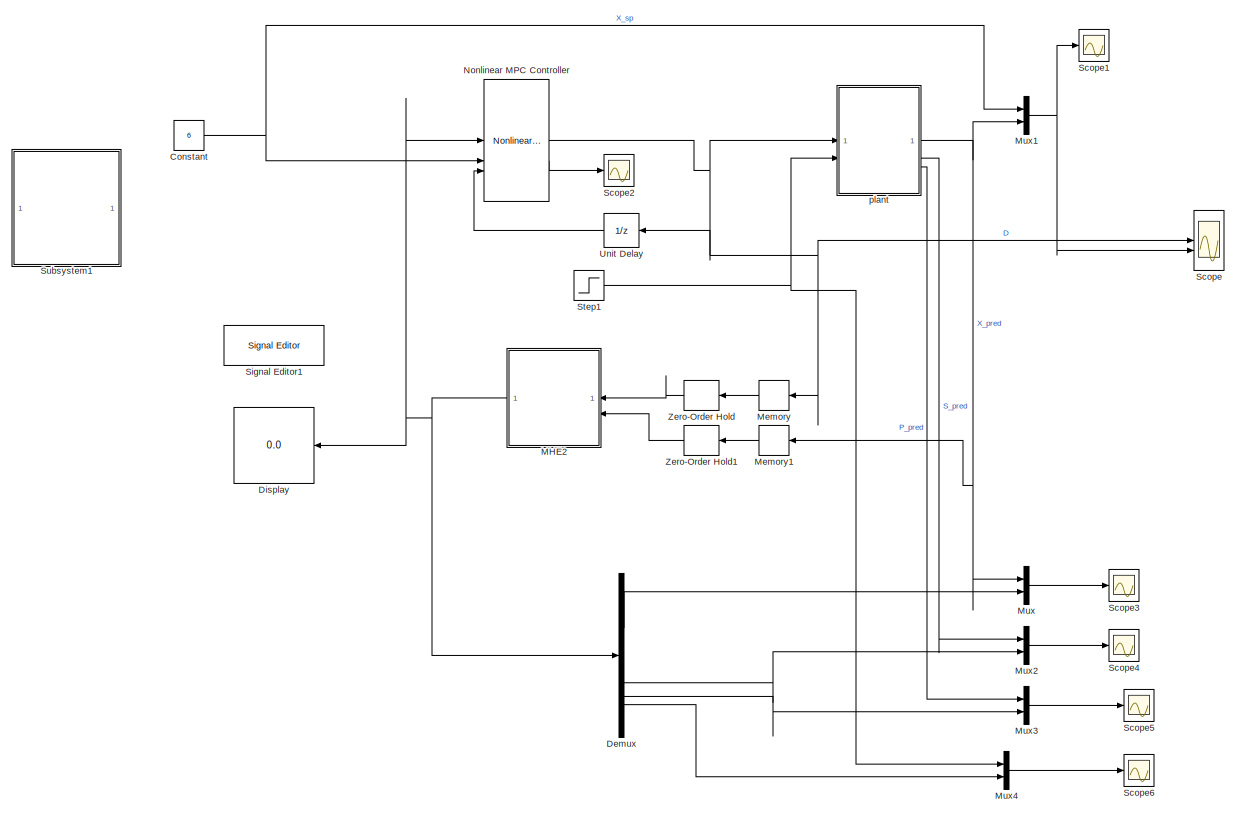
[diagram: root canvas - part 1/2, most of the canvas]
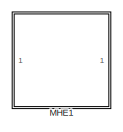
[diagram: root canvas - part 2/2, middle right region]
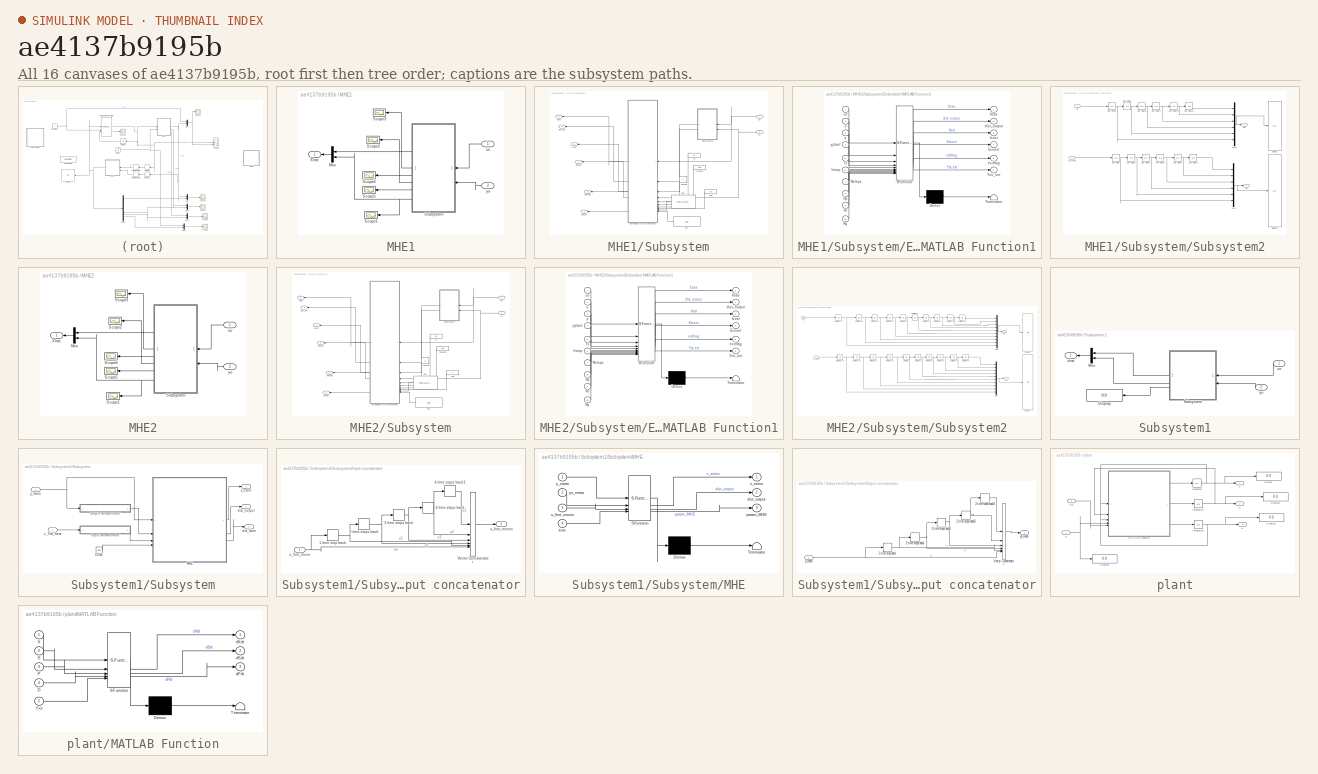
[diagram: thumbnail index - all 16 canvases of the model, root first then tree order]
MODEL slx_ae4137b9195b
KIND model
CONFIG AbsTol = auto
CONFIG EnableMultiTasking = off
CONFIG FixedStep = auto
CONFIG MaxStep = auto
CONFIG MinStep = auto
CONFIG RelTol = 1e-3
CONFIG SampleTimeConstraint = Unconstrained
CONFIG SolverName = VariableStepAuto
CONFIG StartTime = 0.0
CONFIG StopTime = 500
BLOCK [Constant] Constant
  Value = 6
BLOCK [Demux] Demux
BLOCK [Display] Display
  Decimation = 1
BLOCK [SubSystem] MHE1
  Commented = on
BLOCK [Mux] MHE1/Mux
  DisplayOption = bar
  Inputs = 2
BLOCK [Scope] MHE1/Scope1
  Floating = off
  NumInputPorts = 1
  ScopeSpecificationString = Simulink.scopes.TimeScopeBlockCfg('CurrentConfiguration', extmgr.ConfigurationSet(extmgr.Configuration('Core','General UI',true),extmgr.Configuration('Core','Source UI',true),extmgr.Configuration('Sources','WiredSimulink',true,'DataLoggingVariableName','ScopeData1'),extmgr.Configuration('Visuals','Time Domain',true,'SerializedDisplays',{struct('MinYLimReal','8749.54372','MaxYLimReal','8754.10801',...<+1397ch>
BLOCK [Scope] MHE1/Scope2
  Floating = off
  NumInputPorts = 1
  ScopeSpecificationString = Simulink.scopes.TimeScopeBlockCfg('CurrentConfiguration', extmgr.ConfigurationSet(extmgr.Configuration('Core','General UI',true),extmgr.Configuration('Core','Source UI',true),extmgr.Configuration('Sources','WiredSimulink',true,'DataLoggingVariableName','ScopeData3'),extmgr.Configuration('Visuals','Time Domain',true,'SerializedDisplays',{struct('MinYLimReal','0.00304','MaxYLimReal','0.03508','YLabe...<+1373ch>
BLOCK [Scope] MHE1/Scope3
  Floating = off
  NumInputPorts = 1
  ScopeSpecificationString = Simulink.scopes.TimeScopeBlockCfg('CurrentConfiguration', extmgr.ConfigurationSet(extmgr.Configuration('Core','General UI',true),extmgr.Configuration('Core','Source UI',true),extmgr.Configuration('Sources','WiredSimulink',true,'DataLoggingVariableName','ScopeData4'),extmgr.Configuration('Visuals','Time Domain',true,'SerializedDisplays',{struct('MinYLimReal','-2.70623','MaxYLimReal','24.35605','YLa...<+1378ch>
BLOCK [Scope] MHE1/Scope5
  Floating = off
  NumInputPorts = 1
  ScopeSpecificationString = Simulink.scopes.TimeScopeBlockCfg('CurrentConfiguration', extmgr.ConfigurationSet(extmgr.Configuration('Core','General UI',true),extmgr.Configuration('Core','Source UI',true),extmgr.Configuration('Sources','WiredSimulink',true,'DataLoggingVariableName','ScopeData2'),extmgr.Configuration('Visuals','Time Domain',true,'SerializedDisplays',{struct('MinYLimReal','1.00000','MaxYLimReal','3.00000','YLabe...<+1375ch>
BLOCK [Scope] MHE1/Scope6
  Floating = off
  NumInputPorts = 1
  ScopeSpecificationString = Simulink.scopes.TimeScopeBlockCfg('CurrentConfiguration', extmgr.ConfigurationSet(extmgr.Configuration('Core','General UI',true),extmgr.Configuration('Core','Source UI',true),extmgr.Configuration('Sources','WiredSimulink',true,'DataLoggingVariableName','ScopeData2'),extmgr.Configuration('Visuals','Time Domain',true,'SerializedDisplays',{struct('MinYLimReal','-0.14289','MaxYLimReal','0.16211','YLab...<+1408ch>
BLOCK [SubSystem] MHE1/Subsystem
BLOCK [Outport] MHE1/Subsystem/ER_est
  Port = 6
  VectorParamsAs1DForOutWhenUnconnected = off
BLOCK [Outport] MHE1/Subsystem/Ecount
  Port = 2
  VectorParamsAs1DForOutWhenUnconnected = off
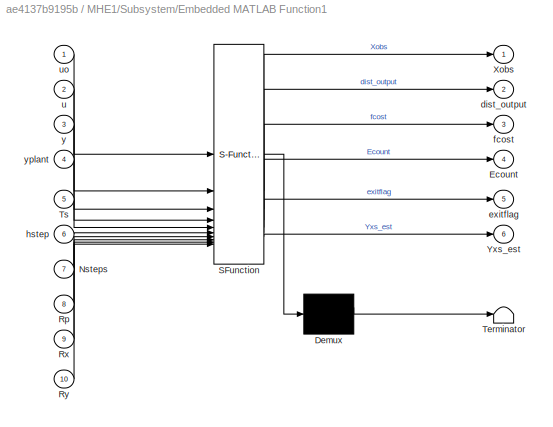
BLOCK [SubSystem] MHE1/Subsystem/Embedded MATLAB Function1
  ErrorFcn = Stateflow.Translate.translate
  PermitHierarchicalResolution = ExplicitOnly
  SFBlockType = MATLAB Function
  TreatAsAtomicUnit = on
BLOCK [Demux] MHE1/Subsystem/Embedded MATLAB Function1/ Demux 
  Outputs = 1
BLOCK [S-Function] MHE1/Subsystem/Embedded MATLAB Function1/ SFunction 
  EnableBusSupport = on
  FunctionName = sf_sfun
  PortCounts = [10 7]
  SFcnIsStateOwnerBlock = off
  SFunctionDeploymentMode = off
  Tag = Stateflow S-Function 4
BLOCK [Terminator] MHE1/Subsystem/Embedded MATLAB Function1/ Terminator 
BLOCK [Outport] MHE1/Subsystem/Embedded MATLAB Function1/Ecount
  Port = 4
  VectorParamsAs1DForOutWhenUnconnected = off
BLOCK [Inport] MHE1/Subsystem/Embedded MATLAB Function1/Nsteps
  Port = 7
BLOCK [Inport] MHE1/Subsystem/Embedded MATLAB Function1/Rp
  Port = 8
BLOCK [Inport] MHE1/Subsystem/Embedded MATLAB Function1/Rx
  Port = 9
BLOCK [Inport] MHE1/Subsystem/Embedded MATLAB Function1/Ry
  Port = 10
BLOCK [Inport] MHE1/Subsystem/Embedded MATLAB Function1/Ts
  Port = 5
BLOCK [Outport] MHE1/Subsystem/Embedded MATLAB Function1/Xobs
  VectorParamsAs1DForOutWhenUnconnected = off
BLOCK [Outport] MHE1/Subsystem/Embedded MATLAB Function1/Yxs_est
  Port = 6
BLOCK [Outport] MHE1/Subsystem/Embedded MATLAB Function1/dist_output
  Port = 2
BLOCK [Outport] MHE1/Subsystem/Embedded MATLAB Function1/exitflag
  Port = 5
BLOCK [Outport] MHE1/Subsystem/Embedded MATLAB Function1/fcost
  Port = 3
  VectorParamsAs1DForOutWhenUnconnected = off
BLOCK [Inport] MHE1/Subsystem/Embedded MATLAB Function1/hstep
  Port = 6
BLOCK [Inport] MHE1/Subsystem/Embedded MATLAB Function1/u
  Port = 2
BLOCK [Inport] MHE1/Subsystem/Embedded MATLAB Function1/uo
BLOCK [Inport] MHE1/Subsystem/Embedded MATLAB Function1/y
  Port = 3
BLOCK [Inport] MHE1/Subsystem/Embedded MATLAB Function1/yplant
  Port = 4
BLOCK [Constant] MHE1/Subsystem/Nsteps
  Value = 2
BLOCK [Constant] MHE1/Subsystem/Rp2
  Value = 0.5
BLOCK [Constant] MHE1/Subsystem/Rx4
  Value = [1e-2,0,0;0,1e-2,0;0,0,1e-2]
BLOCK [Constant] MHE1/Subsystem/Ry4
  Value = 1e4
BLOCK [SubSystem] MHE1/Subsystem/Subsystem2
BLOCK [Display] MHE1/Subsystem/Subsystem2/Display
  Decimation = 1
BLOCK [Display] MHE1/Subsystem/Subsystem2/Display1
  Decimation = 1
BLOCK [Mux] MHE1/Subsystem/Subsystem2/Mux
  DisplayOption = bar
  Inputs = 6
BLOCK [Mux] MHE1/Subsystem/Subsystem2/Mux1
  DisplayOption = bar
  Inputs = 6
BLOCK [UnitDelay] MHE1/Subsystem/Subsystem2/Unit Delay
  HasFrameUpgradeWarning = on
  InitialCondition = 6
  SampleTime = Ts
BLOCK [UnitDelay] MHE1/Subsystem/Subsystem2/Unit Delay1
  HasFrameUpgradeWarning = on
  InitialCondition = 6
  SampleTime = Ts
BLOCK [UnitDelay] MHE1/Subsystem/Subsystem2/Unit Delay10
  HasFrameUpgradeWarning = on
  InitialCondition = 0.202
  SampleTime = Ts
BLOCK [UnitDelay] MHE1/Subsystem/Subsystem2/Unit Delay11
  HasFrameUpgradeWarning = on
  InitialCondition = 0.202
  SampleTime = Ts
BLOCK [UnitDelay] MHE1/Subsystem/Subsystem2/Unit Delay2
  HasFrameUpgradeWarning = on
  InitialCondition = 6
  SampleTime = Ts
BLOCK [UnitDelay] MHE1/Subsystem/Subsystem2/Unit Delay3
  HasFrameUpgradeWarning = on
  InitialCondition = 6
  SampleTime = Ts
BLOCK [UnitDelay] MHE1/Subsystem/Subsystem2/Unit Delay4
  HasFrameUpgradeWarning = on
  InitialCondition = 6
  SampleTime = Ts
BLOCK [UnitDelay] MHE1/Subsystem/Subsystem2/Unit Delay5
  HasFrameUpgradeWarning = on
  InitialCondition = 6
  SampleTime = Ts
BLOCK [UnitDelay] MHE1/Subsystem/Subsystem2/Unit Delay6
  HasFrameUpgradeWarning = on
  InitialCondition = 0.202
  SampleTime = Ts
BLOCK [UnitDelay] MHE1/Subsystem/Subsystem2/Unit Delay7
  HasFrameUpgradeWarning = on
  InitialCondition = 0.202
  SampleTime = Ts
BLOCK [UnitDelay] MHE1/Subsystem/Subsystem2/Unit Delay8
  HasFrameUpgradeWarning = on
  InitialCondition = 0.202
  SampleTime = Ts
BLOCK [UnitDelay] MHE1/Subsystem/Subsystem2/Unit Delay9
  HasFrameUpgradeWarning = on
  InitialCondition = 0.202
  SampleTime = Ts
BLOCK [Outport] MHE1/Subsystem/Subsystem2/um
  VectorParamsAs1DForOutWhenUnconnected = off
BLOCK [Inport] MHE1/Subsystem/Subsystem2/uo
BLOCK [Outport] MHE1/Subsystem/Subsystem2/ym
  Port = 2
  VectorParamsAs1DForOutWhenUnconnected = off
BLOCK [Inport] MHE1/Subsystem/Subsystem2/yo_meas
  Port = 2
BLOCK [Constant] MHE1/Subsystem/Ts
  Value = 0.5
BLOCK [Outport] MHE1/Subsystem/Xobs
  Port = 3
  VectorParamsAs1DForOutWhenUnconnected = off
BLOCK [Outport] MHE1/Subsystem/dist_out
  Port = 4
  VectorParamsAs1DForOutWhenUnconnected = off
BLOCK [Outport] MHE1/Subsystem/exitflag
  Port = 5
  VectorParamsAs1DForOutWhenUnconnected = off
BLOCK [Outport] MHE1/Subsystem/fcost
  VectorParamsAs1DForOutWhenUnconnected = off
BLOCK [Constant] MHE1/Subsystem/hsteps1
  Value = 0.05
BLOCK [Inport] MHE1/Subsystem/uo
BLOCK [Inport] MHE1/Subsystem/yo
  Port = 2
BLOCK [Outport] MHE1/Xhat
BLOCK [Inport] MHE1/uo
BLOCK [Inport] MHE1/yo
  Port = 2
BLOCK [SubSystem] MHE2
BLOCK [Mux] MHE2/Mux
  DisplayOption = bar
  Inputs = 2
BLOCK [Scope] MHE2/Scope1
  Floating = off
  NumInputPorts = 1
  ScopeSpecificationString = Simulink.scopes.TimeScopeBlockCfg('CurrentConfiguration', extmgr.ConfigurationSet(extmgr.Configuration('Core','General UI',true),extmgr.Configuration('Core','Source UI',true),extmgr.Configuration('Sources','WiredSimulink',true,'DataLoggingVariableName','ScopeData1'),extmgr.Configuration('Visuals','Time Domain',true,'SerializedDisplays',{struct('MinYLimReal','8749.54372','MaxYLimReal','8754.10801',...<+1397ch>
BLOCK [Scope] MHE2/Scope2
  Floating = off
  NumInputPorts = 1
  ScopeSpecificationString = Simulink.scopes.TimeScopeBlockCfg('CurrentConfiguration', extmgr.ConfigurationSet(extmgr.Configuration('Core','General UI',true),extmgr.Configuration('Core','Source UI',true),extmgr.Configuration('Sources','WiredSimulink',true,'DataLoggingVariableName','ScopeData3'),extmgr.Configuration('Visuals','Time Domain',true,'SerializedDisplays',{struct('MinYLimReal','0.00304','MaxYLimReal','0.03508','YLabe...<+1373ch>
BLOCK [Scope] MHE2/Scope3
  Floating = off
  NumInputPorts = 1
  ScopeSpecificationString = Simulink.scopes.TimeScopeBlockCfg('CurrentConfiguration', extmgr.ConfigurationSet(extmgr.Configuration('Core','General UI',true),extmgr.Configuration('Core','Source UI',true),extmgr.Configuration('Sources','WiredSimulink',true,'DataLoggingVariableName','ScopeData4'),extmgr.Configuration('Visuals','Time Domain',true,'SerializedDisplays',{struct('MinYLimReal','-2.70623','MaxYLimReal','24.35605','YLa...<+1378ch>
BLOCK [Scope] MHE2/Scope5
  Floating = off
  NumInputPorts = 1
  ScopeSpecificationString = Simulink.scopes.TimeScopeBlockCfg('CurrentConfiguration', extmgr.ConfigurationSet(extmgr.Configuration('Core','General UI',true),extmgr.Configuration('Core','Source UI',true),extmgr.Configuration('Sources','WiredSimulink',true,'DataLoggingVariableName','ScopeData2'),extmgr.Configuration('Visuals','Time Domain',true,'SerializedDisplays',{struct('MinYLimReal','1.00000','MaxYLimReal','3.00000','YLabe...<+1375ch>
BLOCK [Scope] MHE2/Scope6
  Floating = off
  NumInputPorts = 1
  ScopeSpecificationString = Simulink.scopes.TimeScopeBlockCfg('CurrentConfiguration', extmgr.ConfigurationSet(extmgr.Configuration('Core','General UI',true),extmgr.Configuration('Core','Source UI',true),extmgr.Configuration('Sources','WiredSimulink',true,'DataLoggingVariableName','ScopeData2'),extmgr.Configuration('Visuals','Time Domain',true,'SerializedDisplays',{struct('MinYLimReal','-0.14289','MaxYLimReal','0.16211','YLab...<+1408ch>
BLOCK [SubSystem] MHE2/Subsystem
BLOCK [Outport] MHE2/Subsystem/ER_est
  Port = 6
  VectorParamsAs1DForOutWhenUnconnected = off
BLOCK [Outport] MHE2/Subsystem/Ecount
  Port = 2
  VectorParamsAs1DForOutWhenUnconnected = off
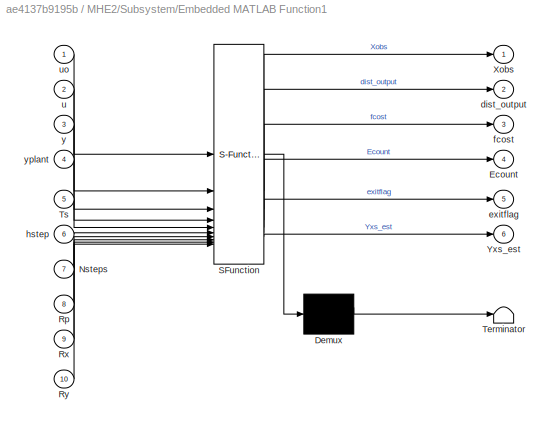
BLOCK [SubSystem] MHE2/Subsystem/Embedded MATLAB Function1
  ErrorFcn = Stateflow.Translate.translate
  PermitHierarchicalResolution = ExplicitOnly
  SFBlockType = MATLAB Function
  TreatAsAtomicUnit = on
BLOCK [Demux] MHE2/Subsystem/Embedded MATLAB Function1/ Demux 
  Outputs = 1
BLOCK [S-Function] MHE2/Subsystem/Embedded MATLAB Function1/ SFunction 
  EnableBusSupport = on
  FunctionName = sf_sfun
  PortCounts = [10 7]
  SFcnIsStateOwnerBlock = off
  SFunctionDeploymentMode = off
  Tag = Stateflow S-Function 3
BLOCK [Terminator] MHE2/Subsystem/Embedded MATLAB Function1/ Terminator 
BLOCK [Outport] MHE2/Subsystem/Embedded MATLAB Function1/Ecount
  Port = 4
  VectorParamsAs1DForOutWhenUnconnected = off
BLOCK [Inport] MHE2/Subsystem/Embedded MATLAB Function1/Nsteps
  Port = 7
BLOCK [Inport] MHE2/Subsystem/Embedded MATLAB Function1/Rp
  Port = 8
BLOCK [Inport] MHE2/Subsystem/Embedded MATLAB Function1/Rx
  Port = 9
BLOCK [Inport] MHE2/Subsystem/Embedded MATLAB Function1/Ry
  Port = 10
BLOCK [Inport] MHE2/Subsystem/Embedded MATLAB Function1/Ts
  Port = 5
BLOCK [Outport] MHE2/Subsystem/Embedded MATLAB Function1/Xobs
  VectorParamsAs1DForOutWhenUnconnected = off
BLOCK [Outport] MHE2/Subsystem/Embedded MATLAB Function1/Yxs_est
  Port = 6
BLOCK [Outport] MHE2/Subsystem/Embedded MATLAB Function1/dist_output
  Port = 2
BLOCK [Outport] MHE2/Subsystem/Embedded MATLAB Function1/exitflag
  Port = 5
BLOCK [Outport] MHE2/Subsystem/Embedded MATLAB Function1/fcost
  Port = 3
  VectorParamsAs1DForOutWhenUnconnected = off
BLOCK [Inport] MHE2/Subsystem/Embedded MATLAB Function1/hstep
  Port = 6
BLOCK [Inport] MHE2/Subsystem/Embedded MATLAB Function1/u
  Port = 2
BLOCK [Inport] MHE2/Subsystem/Embedded MATLAB Function1/uo
BLOCK [Inport] MHE2/Subsystem/Embedded MATLAB Function1/y
  Port = 3
BLOCK [Inport] MHE2/Subsystem/Embedded MATLAB Function1/yplant
  Port = 4
BLOCK [Constant] MHE2/Subsystem/Nsteps
  Value = 2
BLOCK [Constant] MHE2/Subsystem/Rp2
  Value = 5
BLOCK [Constant] MHE2/Subsystem/Rx4
  Value = [1e1,0,0;0,1e1,0;0,0,1e1]
BLOCK [Constant] MHE2/Subsystem/Ry4
  Value = 1e3
BLOCK [SubSystem] MHE2/Subsystem/Subsystem2
BLOCK [Display] MHE2/Subsystem/Subsystem2/Display
  Decimation = 1
BLOCK [Display] MHE2/Subsystem/Subsystem2/Display1
  Decimation = 1
BLOCK [Mux] MHE2/Subsystem/Subsystem2/Mux
  DisplayOption = bar
  Inputs = 10
BLOCK [Mux] MHE2/Subsystem/Subsystem2/Mux1
  DisplayOption = bar
  Inputs = 10
BLOCK [UnitDelay] MHE2/Subsystem/Subsystem2/Unit Delay
  HasFrameUpgradeWarning = on
  InitialCondition = 6
  SampleTime = Ts
BLOCK [UnitDelay] MHE2/Subsystem/Subsystem2/Unit Delay1
  HasFrameUpgradeWarning = on
  InitialCondition = 6
  SampleTime = Ts
BLOCK [UnitDelay] MHE2/Subsystem/Subsystem2/Unit Delay10
  HasFrameUpgradeWarning = on
  InitialCondition = 0.202
  SampleTime = Ts
BLOCK [UnitDelay] MHE2/Subsystem/Subsystem2/Unit Delay11
  HasFrameUpgradeWarning = on
  InitialCondition = 0.202
  SampleTime = Ts
BLOCK [UnitDelay] MHE2/Subsystem/Subsystem2/Unit Delay12
  HasFrameUpgradeWarning = on
  InitialCondition = 0.202
  SampleTime = Ts
BLOCK [UnitDelay] MHE2/Subsystem/Subsystem2/Unit Delay13
  HasFrameUpgradeWarning = on
  InitialCondition = 0.202
  SampleTime = Ts
BLOCK [UnitDelay] MHE2/Subsystem/Subsystem2/Unit Delay14
  HasFrameUpgradeWarning = on
  InitialCondition = 0.202
  SampleTime = Ts
BLOCK [UnitDelay] MHE2/Subsystem/Subsystem2/Unit Delay15
  HasFrameUpgradeWarning = on
  InitialCondition = 0.202
  SampleTime = Ts
BLOCK [UnitDelay] MHE2/Subsystem/Subsystem2/Unit Delay16
  HasFrameUpgradeWarning = on
  InitialCondition = 6
  SampleTime = Ts
BLOCK [UnitDelay] MHE2/Subsystem/Subsystem2/Unit Delay17
  HasFrameUpgradeWarning = on
  InitialCondition = 6
  SampleTime = Ts
BLOCK [UnitDelay] MHE2/Subsystem/Subsystem2/Unit Delay18
  HasFrameUpgradeWarning = on
  InitialCondition = 6
  SampleTime = Ts
BLOCK [UnitDelay] MHE2/Subsystem/Subsystem2/Unit Delay19
  HasFrameUpgradeWarning = on
  InitialCondition = 6
  SampleTime = Ts
BLOCK [UnitDelay] MHE2/Subsystem/Subsystem2/Unit Delay2
  HasFrameUpgradeWarning = on
  InitialCondition = 6
  SampleTime = Ts
BLOCK [UnitDelay] MHE2/Subsystem/Subsystem2/Unit Delay3
  HasFrameUpgradeWarning = on
  InitialCondition = 6
  SampleTime = Ts
BLOCK [UnitDelay] MHE2/Subsystem/Subsystem2/Unit Delay4
  HasFrameUpgradeWarning = on
  InitialCondition = 6
  SampleTime = Ts
BLOCK [UnitDelay] MHE2/Subsystem/Subsystem2/Unit Delay5
  HasFrameUpgradeWarning = on
  InitialCondition = 6
  SampleTime = Ts
BLOCK [UnitDelay] MHE2/Subsystem/Subsystem2/Unit Delay6
  HasFrameUpgradeWarning = on
  InitialCondition = 0.202
  SampleTime = Ts
BLOCK [UnitDelay] MHE2/Subsystem/Subsystem2/Unit Delay7
  HasFrameUpgradeWarning = on
  InitialCondition = 0.202
  SampleTime = Ts
BLOCK [UnitDelay] MHE2/Subsystem/Subsystem2/Unit Delay8
  HasFrameUpgradeWarning = on
  InitialCondition = 0.202
  SampleTime = Ts
BLOCK [UnitDelay] MHE2/Subsystem/Subsystem2/Unit Delay9
  HasFrameUpgradeWarning = on
  InitialCondition = 0.202
  SampleTime = Ts
BLOCK [Outport] MHE2/Subsystem/Subsystem2/um
  VectorParamsAs1DForOutWhenUnconnected = off
BLOCK [Inport] MHE2/Subsystem/Subsystem2/uo
BLOCK [Outport] MHE2/Subsystem/Subsystem2/ym
  Port = 2
  VectorParamsAs1DForOutWhenUnconnected = off
BLOCK [Inport] MHE2/Subsystem/Subsystem2/yo_meas
  Port = 2
BLOCK [Constant] MHE2/Subsystem/Ts
  Value = 0.5
BLOCK [Outport] MHE2/Subsystem/Xobs
  Port = 3
  VectorParamsAs1DForOutWhenUnconnected = off
BLOCK [Outport] MHE2/Subsystem/dist_out
  Port = 4
  VectorParamsAs1DForOutWhenUnconnected = off
BLOCK [Outport] MHE2/Subsystem/exitflag
  Port = 5
  VectorParamsAs1DForOutWhenUnconnected = off
BLOCK [Outport] MHE2/Subsystem/fcost
  VectorParamsAs1DForOutWhenUnconnected = off
BLOCK [Constant] MHE2/Subsystem/hsteps1
  Value = 0.05
BLOCK [Inport] MHE2/Subsystem/uo
BLOCK [Inport] MHE2/Subsystem/yo
  Port = 2
BLOCK [Outport] MHE2/Xhat
BLOCK [Inport] MHE2/uo
BLOCK [Inport] MHE2/yo
  Port = 2
BLOCK [Memory] Memory
  InitialCondition = 0.202
BLOCK [Memory] Memory1
  InitialCondition = 6
BLOCK [Mux] Mux
  DisplayOption = bar
  Inputs = 2
BLOCK [Mux] Mux1
  DisplayOption = bar
  Inputs = 2
BLOCK [Mux] Mux2
  DisplayOption = bar
  Inputs = 2
BLOCK [Mux] Mux3
  DisplayOption = bar
  Inputs = 2
BLOCK [Mux] Mux4
  DisplayOption = bar
  Inputs = 2
BLOCK [Reference] Nonlinear MPC Controller  REF=mpclib/Nonlinear MPC Controller  (lib defined in mdl_ae329e0e0455)
  SourceBlock = mpclib/Nonlinear MPC Controller
  SourceType = NonlinearMPC
BLOCK [Scope] Scope
  Floating = off
  NumInputPorts = 2
  ScopeSpecificationString = Simulink.scopes.TimeScopeBlockCfg('CurrentConfiguration', extmgr.ConfigurationSet(extmgr.Configuration('Core','General UI',true),extmgr.Configuration('Core','Source UI',true),extmgr.Configuration('Sources','WiredSimulink',true),extmgr.Configuration('Visuals','Time Domain',true,'SerializedDisplays',{struct('MinYLimReal','-0.03015','MaxYLimReal','0.2713','YLabelReal','','MinYLimMag','0.00000','MaxYL...<+2242ch>
BLOCK [Scope] Scope1
  Floating = off
  NumInputPorts = 1
  ScopeSpecificationString = Simulink.scopes.TimeScopeBlockCfg('CurrentConfiguration', extmgr.ConfigurationSet(extmgr.Configuration('Core','General UI',true),extmgr.Configuration('Core','Source UI',true),extmgr.Configuration('Sources','WiredSimulink',true,'DataLoggingVariableName','ScopeData1'),extmgr.Configuration('Visuals','Time Domain',true,'SerializedDisplays',{struct('MinYLimReal','4.871','MaxYLimReal','6.16098','YLabelR...<+1362ch>
BLOCK [Scope] Scope2
  Floating = off
  NumInputPorts = 1
  ScopeSpecificationString = Simulink.scopes.TimeScopeBlockCfg('CurrentConfiguration', extmgr.ConfigurationSet(extmgr.Configuration('Core','General UI',true),extmgr.Configuration('Core','Source UI',true),extmgr.Configuration('Sources','WiredSimulink',true,'DataLoggingVariableName','ScopeData2'),extmgr.Configuration('Visuals','Time Domain',true,'SerializedDisplays',{struct('MinYLimReal','0.875','MaxYLimReal','2.125','YLabelRea...<+1341ch>
BLOCK [Scope] Scope3
  Floating = off
  NumInputPorts = 1
  ScopeSpecificationString = Simulink.scopes.TimeScopeBlockCfg('CurrentConfiguration', extmgr.ConfigurationSet(extmgr.Configuration('Core','General UI',true),extmgr.Configuration('Core','Source UI',true),extmgr.Configuration('Sources','WiredSimulink',true,'DataLoggingVariableName','ScopeData1'),extmgr.Configuration('Visuals','Time Domain',true,'SerializedDisplays',{struct('MinYLimReal','-1.00000','MaxYLimReal','9.00000','YLab...<+1375ch>
BLOCK [Scope] Scope4
  Floating = off
  NumInputPorts = 1
  ScopeSpecificationString = Simulink.scopes.TimeScopeBlockCfg('CurrentConfiguration', extmgr.ConfigurationSet(extmgr.Configuration('Core','General UI',true),extmgr.Configuration('Core','Source UI',true),extmgr.Configuration('Sources','WiredSimulink',true,'DataLoggingVariableName','ScopeData2'),extmgr.Configuration('Visuals','Time Domain',true,'SerializedDisplays',{struct('MinYLimReal','-3900.40287','MaxYLimReal','34956.5098'...<+1397ch>
BLOCK [Scope] Scope5
  Floating = off
  NumInputPorts = 1
  ScopeSpecificationString = Simulink.scopes.TimeScopeBlockCfg('CurrentConfiguration', extmgr.ConfigurationSet(extmgr.Configuration('Core','General UI',true),extmgr.Configuration('Core','Source UI',true),extmgr.Configuration('Sources','WiredSimulink',true,'DataLoggingVariableName','ScopeData3'),extmgr.Configuration('Visuals','Time Domain',true,'SerializedDisplays',{struct('MinYLimReal','-7.63672','MaxYLimReal','74.99801','YLa...<+1379ch>
BLOCK [Scope] Scope6
  Floating = off
  NumInputPorts = 1
  ScopeSpecificationString = Simulink.scopes.TimeScopeBlockCfg('CurrentConfiguration', extmgr.ConfigurationSet(extmgr.Configuration('Core','General UI',true),extmgr.Configuration('Core','Source UI',true),extmgr.Configuration('Sources','WiredSimulink',true,'DataLoggingVariableName','ScopeData4'),extmgr.Configuration('Visuals','Time Domain',true,'SerializedDisplays',{struct('MinYLimReal','-0.12188','MaxYLimReal','1.09694','YLab...<+1359ch>
BLOCK [Reference] Signal Editor1  REF=SignalEditorBlockLib/Signal Editor
  Commented = on
  LibrarySourceBlock = simulink/Sources/Signal Editor
  SourceBlock = SignalEditorBlockLib/Signal Editor
  SourceType = SignalEditor
  UserDataPersistent = on
BLOCK [Step] Step1
  After = 0.35
  Before = 0.4
  SampleTime = 0
  Time = 200
BLOCK [SubSystem] Subsystem1
  Commented = on
BLOCK [Display] Subsystem1/Display
  Decimation = 1
BLOCK [Mux] Subsystem1/Mux
  DisplayOption = bar
  Inputs = 2
BLOCK [SubSystem] Subsystem1/Subsystem
BLOCK [Clock] Subsystem1/Subsystem/Clock
  Decimation = 20
BLOCK [SubSystem] Subsystem1/Subsystem/Input concatenator
BLOCK [TransportDelay] Subsystem1/Subsystem/Input concatenator/1 time step back
  DelayTime = Ts
  InitialOutput = 0.202
BLOCK [TransportDelay] Subsystem1/Subsystem/Input concatenator/2 time steps back
  DelayTime = Ts
  InitialOutput = 0.202
BLOCK [TransportDelay] Subsystem1/Subsystem/Input concatenator/3 time steps back
  DelayTime = Ts
  InitialOutput = 0.202
BLOCK [TransportDelay] Subsystem1/Subsystem/Input concatenator/4 time steps back
  DelayTime = Ts
  InitialOutput = 0.202
BLOCK [TransportDelay] Subsystem1/Subsystem/Input concatenator/4 time steps back1
  DelayTime = Ts
  InitialOutput = 0.202
BLOCK [Concatenate] Subsystem1/Subsystem/Input concatenator/Vector Concatenator
  Mode = Multidimensional array
  NumInputs = 6
BLOCK [Inport] Subsystem1/Subsystem/Input concatenator/u_first_move
BLOCK [Outport] Subsystem1/Subsystem/Input concatenator/u_first_moves
  PortDimensions = [6,1]
  VectorParamsAs1DForOutWhenUnconnected = off
BLOCK [SubSystem] Subsystem1/Subsystem/MHE
  ErrorFcn = Stateflow.Translate.translate
  PermitHierarchicalResolution = ExplicitOnly
  SFBlockType = MATLAB Function
  TreatAsAtomicUnit = on
BLOCK [Demux] Subsystem1/Subsystem/MHE/ Demux 
  Outputs = 1
BLOCK [S-Function] Subsystem1/Subsystem/MHE/ SFunction 
  EnableBusSupport = on
  FunctionName = sf_sfun
  PortCounts = [4 4]
  SFcnIsStateOwnerBlock = off
  SFunctionDeploymentMode = off
  Tag = Stateflow S-Function 1
BLOCK [Terminator] Subsystem1/Subsystem/MHE/ Terminator 
BLOCK [Outport] Subsystem1/Subsystem/MHE/dist_output
  Port = 2
BLOCK [Outport] Subsystem1/Subsystem/MHE/param_MHE
  Port = 3
BLOCK [Inport] Subsystem1/Subsystem/MHE/time
  Port = 4
BLOCK [Inport] Subsystem1/Subsystem/MHE/u_first_moves
  Port = 3
BLOCK [Outport] Subsystem1/Subsystem/MHE/x_estim
BLOCK [Inport] Subsystem1/Subsystem/MHE/y_meas
BLOCK [Inport] Subsystem1/Subsystem/MHE/ys_meas
  Port = 2
BLOCK [SubSystem] Subsystem1/Subsystem/Output concatenator
BLOCK [TransportDelay] Subsystem1/Subsystem/Output concatenator/1 time step back
  DelayTime = Ts
  InitialOutput = 6
BLOCK [TransportDelay] Subsystem1/Subsystem/Output concatenator/2 time steps back
  DelayTime = Ts
  InitialOutput = 6
BLOCK [TransportDelay] Subsystem1/Subsystem/Output concatenator/2 time steps back1
  DelayTime = Ts
  InitialOutput = 6
BLOCK [TransportDelay] Subsystem1/Subsystem/Output concatenator/2 time steps back2
  DelayTime = Ts
  InitialOutput = 6
BLOCK [TransportDelay] Subsystem1/Subsystem/Output concatenator/2 time steps back3
  DelayTime = Ts
  InitialOutput = 6
BLOCK [Concatenate] Subsystem1/Subsystem/Output concatenator/Vector Concatenator
  Mode = Multidimensional array
  NumInputs = 6
BLOCK [Inport] Subsystem1/Subsystem/Output concatenator/y_meas
BLOCK [Outport] Subsystem1/Subsystem/Output concatenator/ys_meas
  PortDimensions = [6,1]
  VectorParamsAs1DForOutWhenUnconnected = off
BLOCK [Outport] Subsystem1/Subsystem/dist_output
  Port = 3
BLOCK [Outport] Subsystem1/Subsystem/dist_state
  Port = 2
BLOCK [Inport] Subsystem1/Subsystem/u_first_move
  PortDimensions = [1,1]
BLOCK [Outport] Subsystem1/Subsystem/x_estim
BLOCK [Inport] Subsystem1/Subsystem/y_meas
  Port = 2
  PortDimensions = [1,1]
BLOCK [Inport] Subsystem1/uo
BLOCK [Outport] Subsystem1/xhat
BLOCK [Inport] Subsystem1/yo
  Port = 2
BLOCK [UnitDelay] Unit Delay
  HasFrameUpgradeWarning = on
  InitialCondition = 0.202
  SampleTime = Ts
BLOCK [ZeroOrderHold] Zero-Order Hold
  SampleTime = Ts
BLOCK [ZeroOrderHold] Zero-Order Hold1
  SampleTime = Ts
BLOCK [SubSystem] plant
BLOCK [Inport] plant/D
BLOCK [Display] plant/Display
  Decimation = 1
BLOCK [Display] plant/Display1
  Decimation = 1
BLOCK [Display] plant/Display2
  Decimation = 1
BLOCK [Display] plant/Display3
  Decimation = 1
BLOCK [Integrator] plant/Integrator
  InitialCondition = 6
BLOCK [Integrator] plant/Integrator1
  InitialCondition = 5
BLOCK [Integrator] plant/Integrator2
  InitialCondition = 19.14
BLOCK [SubSystem] plant/MATLAB Function
  ErrorFcn = Stateflow.Translate.translate
  PermitHierarchicalResolution = ExplicitOnly
  SFBlockType = MATLAB Function
  TreatAsAtomicUnit = on
BLOCK [Demux] plant/MATLAB Function/ Demux 
  Outputs = 1
BLOCK [S-Function] plant/MATLAB Function/ SFunction 
  EnableBusSupport = on
  FunctionName = sf_sfun
  PortCounts = [5 4]
  SFcnIsStateOwnerBlock = off
  SFunctionDeploymentMode = off
  Tag = Stateflow S-Function 2
BLOCK [Terminator] plant/MATLAB Function/ Terminator 
BLOCK [Inport] plant/MATLAB Function/D
  Port = 4
BLOCK [Inport] plant/MATLAB Function/P
  Port = 3
BLOCK [Inport] plant/MATLAB Function/S
  Port = 2
BLOCK [Inport] plant/MATLAB Function/X
BLOCK [Inport] plant/MATLAB Function/Yxs
  Port = 5
BLOCK [Outport] plant/MATLAB Function/dPdt
  Port = 3
BLOCK [Outport] plant/MATLAB Function/dSdt
  Port = 2
BLOCK [Outport] plant/MATLAB Function/dXdt
BLOCK [Outport] plant/P
  Port = 3
BLOCK [Outport] plant/S
  Port = 2
BLOCK [Outport] plant/X
BLOCK [Inport] plant/Yxs
  Port = 2
NET Constant:1 -> Mux1:1, Nonlinear MPC Controller:2
LINE Demux:1 -> Mux:2
LINE Demux:2 -> Mux2:2
LINE Demux:3 -> Mux3:2
LINE Demux:4 -> Mux4:2
LINE MHE1/Mux:1 -> MHE1/Xhat:1
LINE MHE1/Subsystem/Embedded MATLAB Function1:1 -> MHE1/Subsystem/Xobs:1
LINE MHE1/Subsystem/Embedded MATLAB Function1:2 -> MHE1/Subsystem/dist_out:1
LINE MHE1/Subsystem/Embedded MATLAB Function1:3 -> MHE1/Subsystem/fcost:1
LINE MHE1/Subsystem/Embedded MATLAB Function1:4 -> MHE1/Subsystem/Ecount:1
LINE MHE1/Subsystem/Embedded MATLAB Function1:5 -> MHE1/Subsystem/exitflag:1
LINE MHE1/Subsystem/Embedded MATLAB Function1:6 -> MHE1/Subsystem/ER_est:1
LINE MHE1/Subsystem/Nsteps:1 -> MHE1/Subsystem/Embedded MATLAB Function1:7
LINE MHE1/Subsystem/Rp2:1 -> MHE1/Subsystem/Embedded MATLAB Function1:8
LINE MHE1/Subsystem/Rx4:1 -> MHE1/Subsystem/Embedded MATLAB Function1:9
LINE MHE1/Subsystem/Ry4:1 -> MHE1/Subsystem/Embedded MATLAB Function1:10
NET MHE1/Subsystem/Subsystem2/Mux1:1 -> MHE1/Subsystem/Subsystem2/Display:1, MHE1/Subsystem/Subsystem2/um:1
NET MHE1/Subsystem/Subsystem2/Mux:1 -> MHE1/Subsystem/Subsystem2/Display1:1, MHE1/Subsystem/Subsystem2/ym:1
NET MHE1/Subsystem/Subsystem2/Unit Delay10:1 -> MHE1/Subsystem/Subsystem2/Mux1:2, MHE1/Subsystem/Subsystem2/Unit Delay11:1
LINE MHE1/Subsystem/Subsystem2/Unit Delay11:1 -> MHE1/Subsystem/Subsystem2/Mux1:1
NET MHE1/Subsystem/Subsystem2/Unit Delay1:1 -> MHE1/Subsystem/Subsystem2/Mux:5, MHE1/Subsystem/Subsystem2/Unit Delay2:1
NET MHE1/Subsystem/Subsystem2/Unit Delay2:1 -> MHE1/Subsystem/Subsystem2/Mux:4, MHE1/Subsystem/Subsystem2/Unit Delay3:1
NET MHE1/Subsystem/Subsystem2/Unit Delay3:1 -> MHE1/Subsystem/Subsystem2/Mux:3, MHE1/Subsystem/Subsystem2/Unit Delay4:1
NET MHE1/Subsystem/Subsystem2/Unit Delay4:1 -> MHE1/Subsystem/Subsystem2/Mux:2, MHE1/Subsystem/Subsystem2/Unit Delay5:1
LINE MHE1/Subsystem/Subsystem2/Unit Delay5:1 -> MHE1/Subsystem/Subsystem2/Mux:1
NET MHE1/Subsystem/Subsystem2/Unit Delay6:1 -> MHE1/Subsystem/Subsystem2/Mux1:6, MHE1/Subsystem/Subsystem2/Unit Delay7:1
NET MHE1/Subsystem/Subsystem2/Unit Delay7:1 -> MHE1/Subsystem/Subsystem2/Mux1:5, MHE1/Subsystem/Subsystem2/Unit Delay8:1
NET MHE1/Subsystem/Subsystem2/Unit Delay8:1 -> MHE1/Subsystem/Subsystem2/Mux1:4, MHE1/Subsystem/Subsystem2/Unit Delay9:1
NET MHE1/Subsystem/Subsystem2/Unit Delay9:1 -> MHE1/Subsystem/Subsystem2/Mux1:3, MHE1/Subsystem/Subsystem2/Unit Delay10:1
NET MHE1/Subsystem/Subsystem2/Unit Delay:1 -> MHE1/Subsystem/Subsystem2/Mux:6, MHE1/Subsystem/Subsystem2/Unit Delay1:1
LINE MHE1/Subsystem/Subsystem2/uo:1 -> MHE1/Subsystem/Subsystem2/Unit Delay6:1
LINE MHE1/Subsystem/Subsystem2/yo_meas:1 -> MHE1/Subsystem/Subsystem2/Unit Delay:1
LINE MHE1/Subsystem/Subsystem2:1 -> MHE1/Subsystem/Embedded MATLAB Function1:2
LINE MHE1/Subsystem/Subsystem2:2 -> MHE1/Subsystem/Embedded MATLAB Function1:3
LINE MHE1/Subsystem/Ts:1 -> MHE1/Subsystem/Embedded MATLAB Function1:5
LINE MHE1/Subsystem/hsteps1:1 -> MHE1/Subsystem/Embedded MATLAB Function1:6
NET MHE1/Subsystem/uo:1 -> MHE1/Subsystem/Embedded MATLAB Function1:1, MHE1/Subsystem/Subsystem2:1
NET MHE1/Subsystem/yo:1 -> MHE1/Subsystem/Embedded MATLAB Function1:4, MHE1/Subsystem/Subsystem2:2
LINE MHE1/Subsystem:1 -> MHE1/Scope3:1
LINE MHE1/Subsystem:2 -> MHE1/Scope2:1
LINE MHE1/Subsystem:3 -> MHE1/Mux:1
LINE MHE1/Subsystem:4 -> MHE1/Scope6:1
LINE MHE1/Subsystem:5 -> MHE1/Scope5:1
NET MHE1/Subsystem:6 -> MHE1/Mux:2, MHE1/Scope1:1
LINE MHE1/uo:1 -> MHE1/Subsystem:1
LINE MHE1/yo:1 -> MHE1/Subsystem:2
LINE MHE2/Mux:1 -> MHE2/Xhat:1
LINE MHE2/Subsystem/Embedded MATLAB Function1:1 -> MHE2/Subsystem/Xobs:1
LINE MHE2/Subsystem/Embedded MATLAB Function1:2 -> MHE2/Subsystem/dist_out:1
LINE MHE2/Subsystem/Embedded MATLAB Function1:3 -> MHE2/Subsystem/fcost:1
LINE MHE2/Subsystem/Embedded MATLAB Function1:4 -> MHE2/Subsystem/Ecount:1
LINE MHE2/Subsystem/Embedded MATLAB Function1:5 -> MHE2/Subsystem/exitflag:1
LINE MHE2/Subsystem/Embedded MATLAB Function1:6 -> MHE2/Subsystem/ER_est:1
LINE MHE2/Subsystem/Nsteps:1 -> MHE2/Subsystem/Embedded MATLAB Function1:7
LINE MHE2/Subsystem/Rp2:1 -> MHE2/Subsystem/Embedded MATLAB Function1:8
LINE MHE2/Subsystem/Rx4:1 -> MHE2/Subsystem/Embedded MATLAB Function1:9
LINE MHE2/Subsystem/Ry4:1 -> MHE2/Subsystem/Embedded MATLAB Function1:10
NET MHE2/Subsystem/Subsystem2/Mux1:1 -> MHE2/Subsystem/Subsystem2/Display:1, MHE2/Subsystem/Subsystem2/um:1
NET MHE2/Subsystem/Subsystem2/Mux:1 -> MHE2/Subsystem/Subsystem2/Display1:1, MHE2/Subsystem/Subsystem2/ym:1
NET MHE2/Subsystem/Subsystem2/Unit Delay10:1 -> MHE2/Subsystem/Subsystem2/Mux1:2, MHE2/Subsystem/Subsystem2/Unit Delay11:1
LINE MHE2/Subsystem/Subsystem2/Unit Delay11:1 -> MHE2/Subsystem/Subsystem2/Mux1:1
NET MHE2/Subsystem/Subsystem2/Unit Delay12:1 -> MHE2/Subsystem/Subsystem2/Mux1:7, MHE2/Subsystem/Subsystem2/Unit Delay6:1
NET MHE2/Subsystem/Subsystem2/Unit Delay13:1 -> MHE2/Subsystem/Subsystem2/Mux1:8, MHE2/Subsystem/Subsystem2/Unit Delay12:1
NET MHE2/Subsystem/Subsystem2/Unit Delay14:1 -> MHE2/Subsystem/Subsystem2/Mux1:9, MHE2/Subsystem/Subsystem2/Unit Delay13:1
NET MHE2/Subsystem/Subsystem2/Unit Delay15:1 -> MHE2/Subsystem/Subsystem2/Mux1:10, MHE2/Subsystem/Subsystem2/Unit Delay14:1
NET MHE2/Subsystem/Subsystem2/Unit Delay16:1 -> MHE2/Subsystem/Subsystem2/Mux:7, MHE2/Subsystem/Subsystem2/Unit Delay:1
NET MHE2/Subsystem/Subsystem2/Unit Delay17:1 -> MHE2/Subsystem/Subsystem2/Mux:8, MHE2/Subsystem/Subsystem2/Unit Delay16:1
NET MHE2/Subsystem/Subsystem2/Unit Delay18:1 -> MHE2/Subsystem/Subsystem2/Mux:9, MHE2/Subsystem/Subsystem2/Unit Delay17:1
NET MHE2/Subsystem/Subsystem2/Unit Delay19:1 -> MHE2/Subsystem/Subsystem2/Mux:10, MHE2/Subsystem/Subsystem2/Unit Delay18:1
NET MHE2/Subsystem/Subsystem2/Unit Delay1:1 -> MHE2/Subsystem/Subsystem2/Mux:5, MHE2/Subsystem/Subsystem2/Unit Delay2:1
NET MHE2/Subsystem/Subsystem2/Unit Delay2:1 -> MHE2/Subsystem/Subsystem2/Mux:4, MHE2/Subsystem/Subsystem2/Unit Delay3:1
NET MHE2/Subsystem/Subsystem2/Unit Delay3:1 -> MHE2/Subsystem/Subsystem2/Mux:3, MHE2/Subsystem/Subsystem2/Unit Delay4:1
NET MHE2/Subsystem/Subsystem2/Unit Delay4:1 -> MHE2/Subsystem/Subsystem2/Mux:2, MHE2/Subsystem/Subsystem2/Unit Delay5:1
LINE MHE2/Subsystem/Subsystem2/Unit Delay5:1 -> MHE2/Subsystem/Subsystem2/Mux:1
NET MHE2/Subsystem/Subsystem2/Unit Delay6:1 -> MHE2/Subsystem/Subsystem2/Mux1:6, MHE2/Subsystem/Subsystem2/Unit Delay7:1
NET MHE2/Subsystem/Subsystem2/Unit Delay7:1 -> MHE2/Subsystem/Subsystem2/Mux1:5, MHE2/Subsystem/Subsystem2/Unit Delay8:1
NET MHE2/Subsystem/Subsystem2/Unit Delay8:1 -> MHE2/Subsystem/Subsystem2/Mux1:4, MHE2/Subsystem/Subsystem2/Unit Delay9:1
NET MHE2/Subsystem/Subsystem2/Unit Delay9:1 -> MHE2/Subsystem/Subsystem2/Mux1:3, MHE2/Subsystem/Subsystem2/Unit Delay10:1
NET MHE2/Subsystem/Subsystem2/Unit Delay:1 -> MHE2/Subsystem/Subsystem2/Mux:6, MHE2/Subsystem/Subsystem2/Unit Delay1:1
LINE MHE2/Subsystem/Subsystem2/uo:1 -> MHE2/Subsystem/Subsystem2/Unit Delay15:1
LINE MHE2/Subsystem/Subsystem2/yo_meas:1 -> MHE2/Subsystem/Subsystem2/Unit Delay19:1
LINE MHE2/Subsystem/Subsystem2:1 -> MHE2/Subsystem/Embedded MATLAB Function1:2
LINE MHE2/Subsystem/Subsystem2:2 -> MHE2/Subsystem/Embedded MATLAB Function1:3
LINE MHE2/Subsystem/Ts:1 -> MHE2/Subsystem/Embedded MATLAB Function1:5
LINE MHE2/Subsystem/hsteps1:1 -> MHE2/Subsystem/Embedded MATLAB Function1:6
NET MHE2/Subsystem/uo:1 -> MHE2/Subsystem/Embedded MATLAB Function1:1, MHE2/Subsystem/Subsystem2:1
NET MHE2/Subsystem/yo:1 -> MHE2/Subsystem/Embedded MATLAB Function1:4, MHE2/Subsystem/Subsystem2:2
LINE MHE2/Subsystem:1 -> MHE2/Scope3:1
LINE MHE2/Subsystem:2 -> MHE2/Scope2:1
LINE MHE2/Subsystem:3 -> MHE2/Mux:1
LINE MHE2/Subsystem:4 -> MHE2/Scope6:1
LINE MHE2/Subsystem:5 -> MHE2/Scope5:1
NET MHE2/Subsystem:6 -> MHE2/Mux:2, MHE2/Scope1:1
LINE MHE2/uo:1 -> MHE2/Subsystem:1
LINE MHE2/yo:1 -> MHE2/Subsystem:2
NET MHE2:1 -> Demux:1, Display:1, Nonlinear MPC Controller:1
LINE Memory1:1 -> Zero-Order Hold1:1
LINE Memory:1 -> Zero-Order Hold:1
NET Mux1:1 -> Scope1:1, Scope:2
LINE Mux2:1 -> Scope4:1
LINE Mux3:1 -> Scope5:1
LINE Mux4:1 -> Scope6:1
LINE Mux:1 -> Scope3:1
NET Nonlinear MPC Controller:1 -> Memory:1, Scope:1, Unit Delay:1, plant:1
LINE Nonlinear MPC Controller:2 -> Scope2:1
NET Step1:1 -> Mux4:1, plant:2
LINE Subsystem1/Mux:1 -> Subsystem1/xhat:1
LINE Subsystem1/Subsystem/Clock:1 -> Subsystem1/Subsystem/MHE:4
NET Subsystem1/Subsystem/Input concatenator/1 time step back:1 -> Subsystem1/Subsystem/Input concatenator/2 time steps back:1, Subsystem1/Subsystem/Input concatenator/Vector Concatenator:5
NET Subsystem1/Subsystem/Input concatenator/2 time steps back:1 -> Subsystem1/Subsystem/Input concatenator/3 time steps back:1, Subsystem1/Subsystem/Input concatenator/Vector Concatenator:4
NET Subsystem1/Subsystem/Input concatenator/3 time steps back:1 -> Subsystem1/Subsystem/Input concatenator/4 time steps back:1, Subsystem1/Subsystem/Input concatenator/Vector Concatenator:3
LINE Subsystem1/Subsystem/Input concatenator/4 time steps back1:1 -> Subsystem1/Subsystem/Input concatenator/Vector Concatenator:1
NET Subsystem1/Subsystem/Input concatenator/4 time steps back:1 -> Subsystem1/Subsystem/Input concatenator/4 time steps back1:1, Subsystem1/Subsystem/Input concatenator/Vector Concatenator:2
LINE Subsystem1/Subsystem/Input concatenator/Vector Concatenator:1 -> Subsystem1/Subsystem/Input concatenator/u_first_moves:1
NET Subsystem1/Subsystem/Input concatenator/u_first_move:1 -> Subsystem1/Subsystem/Input concatenator/1 time step back:1, Subsystem1/Subsystem/Input concatenator/Vector Concatenator:6
LINE Subsystem1/Subsystem/Input concatenator:1 -> Subsystem1/Subsystem/MHE:3
LINE Subsystem1/Subsystem/MHE:1 -> Subsystem1/Subsystem/x_estim:1
LINE Subsystem1/Subsystem/MHE:2 -> Subsystem1/Subsystem/dist_output:1
LINE Subsystem1/Subsystem/MHE:3 -> Subsystem1/Subsystem/dist_state:1
NET Subsystem1/Subsystem/Output concatenator/1 time step back:1 -> Subsystem1/Subsystem/Output concatenator/2 time steps back:1, Subsystem1/Subsystem/Output concatenator/Vector Concatenator:5
NET Subsystem1/Subsystem/Output concatenator/2 time steps back1:1 -> Subsystem1/Subsystem/Output concatenator/2 time steps back2:1, Subsystem1/Subsystem/Output concatenator/Vector Concatenator:3
NET Subsystem1/Subsystem/Output concatenator/2 time steps back2:1 -> Subsystem1/Subsystem/Output concatenator/2 time steps back3:1, Subsystem1/Subsystem/Output concatenator/Vector Concatenator:2
LINE Subsystem1/Subsystem/Output concatenator/2 time steps back3:1 -> Subsystem1/Subsystem/Output concatenator/Vector Concatenator:1
NET Subsystem1/Subsystem/Output concatenator/2 time steps back:1 -> Subsystem1/Subsystem/Output concatenator/2 time steps back1:1, Subsystem1/Subsystem/Output concatenator/Vector Concatenator:4
LINE Subsystem1/Subsystem/Output concatenator/Vector Concatenator:1 -> Subsystem1/Subsystem/Output concatenator/ys_meas:1
NET Subsystem1/Subsystem/Output concatenator/y_meas:1 -> Subsystem1/Subsystem/Output concatenator/1 time step back:1, Subsystem1/Subsystem/Output concatenator/Vector Concatenator:6
LINE Subsystem1/Subsystem/Output concatenator:1 -> Subsystem1/Subsystem/MHE:2
LINE Subsystem1/Subsystem/u_first_move:1 -> Subsystem1/Subsystem/Input concatenator:1
NET Subsystem1/Subsystem/y_meas:1 -> Subsystem1/Subsystem/MHE:1, Subsystem1/Subsystem/Output concatenator:1
LINE Subsystem1/Subsystem:1 -> Subsystem1/Mux:1
LINE Subsystem1/Subsystem:2 -> Subsystem1/Mux:2
LINE Subsystem1/Subsystem:3 -> Subsystem1/Display:1
LINE Subsystem1/uo:1 -> Subsystem1/Subsystem:1
LINE Subsystem1/yo:1 -> Subsystem1/Subsystem:2
LINE Unit Delay:1 -> Nonlinear MPC Controller:3
LINE Zero-Order Hold1:1 -> MHE2:2
LINE Zero-Order Hold:1 -> MHE2:1
NET plant/D:1 -> plant/Display3:1, plant/MATLAB Function:4
NET plant/Integrator1:1 -> plant/Display1:1, plant/MATLAB Function:2, plant/S:1
NET plant/Integrator2:1 -> plant/Display2:1, plant/MATLAB Function:3, plant/P:1
NET plant/Integrator:1 -> plant/Display:1, plant/MATLAB Function:1, plant/X:1
LINE plant/MATLAB Function:1 -> plant/Integrator:1
LINE plant/MATLAB Function:2 -> plant/Integrator1:1
LINE plant/MATLAB Function:3 -> plant/Integrator2:1
LINE plant/Yxs:1 -> plant/MATLAB Function:5
NET plant:1 -> Memory1:1, Mux1:2, Mux:1
LINE plant:2 -> Mux2:1
LINE plant:3 -> Mux3:1
note: NET lines group one-source signal fan-out (src -> all destinations, sorted); 1:1 wires keep LINE
CHART Subsystem1/Subsystem/MHE states=1 transitions=1
  STATE_LABEL 'eML_blk_kernel()'
  STATE_LABEL "SCRIPT:\nfunction [x_estim,dist_output,param_MHE] = MHE_4_tanks(y_meas,ys_meas,u_first_moves,time)\n\ncoder.extrinsic('MHE_compute2');\n\nN_MHE=6  ;\n% Ts=2 ;\n\n\nif time < 5\n    \n    x_estim =  [6;5;19.14]  ;\n   % x_estim = [17;17;17];\n    %x_estim = [5.898;1.8];\n    param_MHE = 0.4;\n    dist_output = 0;\nelse\n    \n    [x_estim,param_MHE,dist_output] = MHE_compute2(ys_meas,u_first_moves,N_MHE,y_meas);\n   ...<+76ch>"
CHART plant/MATLAB Function states=1 transitions=1
  STATE_LABEL 'eML_blk_kernel()'
  STATE_LABEL 'SCRIPT:\nfunction [dXdt,dSdt,dPdt] = continuous_fermenter(X,S,P,D,Yxs)\n\nvalues = {22,1.2,50,20,2.2,0.2,0.48};\n\n[Ki,Km,Pm,Sf,alpha,beta,miu_m] = values{:};\n\n\nmiu = (miu_m * (1 - (P/Pm))) * S / (Km + S + (S^2 / Ki))  ;\n\ndXdt = -D * X + miu * X     ;\n\ndSdt = D * (Sf - S) - (1/Yxs) * miu * X   ;\n\ndPdt = -D * P + (alpha * miu + beta) * X   ;\n\nend\n'
CHART MHE2/Subsystem/Embedded
MATLAB Function1 states=1 transitions=1
  STATE_LABEL 'eML_blk_kernel()'
  STATE_LABEL "SCRIPT:\nfunction [Xobs,dist_output,fcost,Ecount,exitflag,Yxs_est] =MHE(uo,u,y,yplant,Ts,hstep,Nsteps,Rp,Rx,Ry)\n\n%#codegen\ncoder.extrinsic('MHE_compute','clear_var');\n\num=[u(1),u(2),u(3),u(4),u(5),u(6),u(7),u(8),u(9),u(10)] ;\n \n\nymeas=[y(1),y(2),y(3),y(4),y(5),y(6),y(7),y(8),y(9),y(10)] ;\n\n\n    \n   \n\n% SAMPLING TIME FOR DISCRETIZATION\n%hstep=1; %sampling time of 10 is with less interation while 5 i...<+848ch>"
CHART MHE1/Subsystem/Embedded
MATLAB Function1 states=1 transitions=1
  STATE_LABEL 'eML_blk_kernel()'
  STATE_LABEL "SCRIPT:\nfunction [Xobs,dist_output,fcost,Ecount,exitflag,Yxs_est] =MHE(uo,u,y,yplant,Ts,hstep,Nsteps,Rp,Rx,Ry)\n\n%#codegen\ncoder.extrinsic('MHE_compute','clear_var');\n\num=[u(1),u(2),u(3),u(4),u(5),u(6)] ;\n \n\nymeas=[y(1),y(2),y(3),y(4),y(5),y(6)] ;\n\n\n    \n   \n\n% SAMPLING TIME FOR DISCRETIZATION\n%hstep=1; %sampling time of 10 is with less interation while 5 is smoother but higher interaction\n%Nsteps=...<+806ch>"
CHART  states=0 transitions=0
CHART  states=0 transitions=0
CHART  states=0 transitions=0
CHART  states=0 transitions=0
